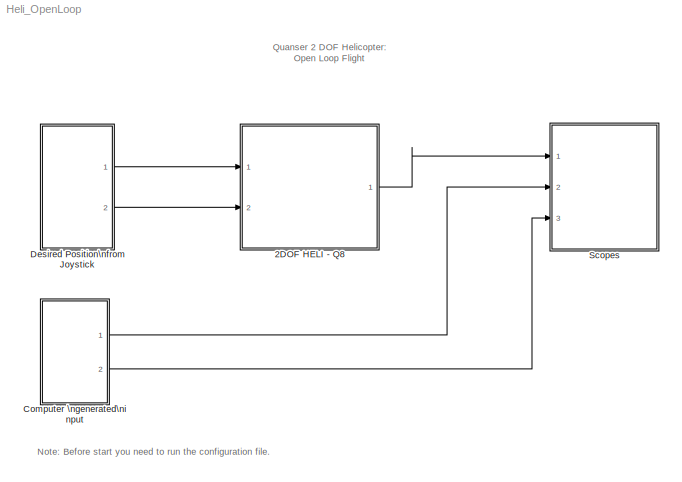
MODEL Heli_OpenLoop
KIND model
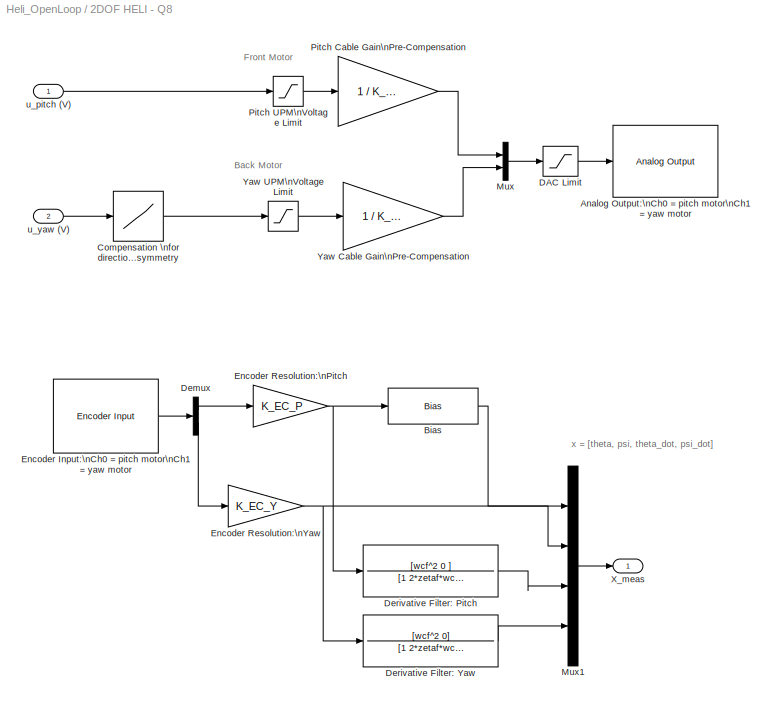
BLOCK [SubSystem] 2DOF HELI - Q8
  AncestorBlock = heli_2d_lib/2DOF HELI - Q8
  MaskHideContents = off
  MinAlgLoopOccurrences = off
  Ports = [2, 1]
  RTWSystemCode = Auto
  TreatAsAtomicUnit = off
BLOCK [Reference] 2DOF HELI - Q8/Analog Output:\nCh0 = pitch motor\nCh1 = yaw motor  REF=qctools/Quanser Consulting\nQ8 Series/Analog Output
  Ports = [1]
  SourceBlock = qctools/Quanser Consulting\nQ8 Series/Analog Output
  SourceType = Q8 Analog Output
  boardNumber = 0
  channels = [0,1]
  finalVect = 0
  initialVect = 0
  inputVolts = on
  modesVect = 0
  rangesVect = 10
  sampleTime = -1
  simulationOutput = off
BLOCK [Bias] 2DOF HELI - Q8/Bias
  Bias = theta_0
  SaturateOnIntegerOverflow = off
BLOCK [Lookup] 2DOF HELI - Q8/Compensation \nfor direction Asymmetry 
  InputValues = [-[12.5  10 7.5]  0  [7.5 10  12.5 15] ]
  OutputValues = [-[12.5  10 7.5] *.4 0  [7.5 10  12.5 15] ]
  SaturateOnIntegerOverflow = off
BLOCK [Saturate] 2DOF HELI - Q8/DAC Limit
  LowerLimit = - VMAX_DAC
  UpperLimit = VMAX_DAC
BLOCK [Demux] 2DOF HELI - Q8/Demux
  DisplayOption = bar
  Outputs = 2
  Ports = [1, 2]
BLOCK [TransferFcn] 2DOF HELI - Q8/Derivative Filter: Pitch
  Denominator = [1 2*zetaf*wcf wcf^2]
  Numerator = [wcf^2 0 ]
BLOCK [TransferFcn] 2DOF HELI - Q8/Derivative Filter: Yaw
  Denominator = [1 2*zetaf*wcf wcf^2]
  Numerator = [wcf^2 0]
BLOCK [Reference] 2DOF HELI - Q8/Encoder Input:\nCh0 = pitch motor\nCh1 = yaw motor  REF=qctools/Quanser Consulting\nQ8 Series/Encoder Input
  Ports = [0, 1]
  ShowPortLabels = on
  SourceBlock = qctools/Quanser Consulting\nQ8 Series/Encoder Input
  SourceType = Q8 Encoder Input
  bcd = off
  boardNumber = 0
  channels = [0,1]
  enableIndex = on
  flagString = FLG1 is IDX and FLG2 is E
  frequency = 16666666.6667
  indexPolarity = on
  initial = 0
  modeStr = Normal
  prescale = 1
  preserveCounts = off
  quadratureStr = 4X
  reloadOnIndex = off
  sampleTime = default_sample_time
  simulationInput = off
  synchronousIndex = on
BLOCK [Gain] 2DOF HELI - Q8/Encoder Resolution:\nPitch 
  Gain = K_EC_P
  OutDataTypeMode = Inherit via internal rule
  ParameterDataTypeMode = Inherit via internal rule
  SaturateOnIntegerOverflow = off
BLOCK [Gain] 2DOF HELI - Q8/Encoder Resolution:\nYaw
  Gain = K_EC_Y
  OutDataTypeMode = Inherit via internal rule
  ParameterDataTypeMode = Inherit via internal rule
  SaturateOnIntegerOverflow = off
BLOCK [Mux] 2DOF HELI - Q8/Mux
  DisplayOption = bar
  Inputs = 2
  Ports = [2, 1]
BLOCK [Mux] 2DOF HELI - Q8/Mux1
  DisplayOption = bar
  Ports = [4, 1]
BLOCK [Gain] 2DOF HELI - Q8/Pitch Cable Gain\nPre-Compensation
  Gain = 1 / K_CABLE_P
BLOCK [Saturate] 2DOF HELI - Q8/Pitch UPM\nVoltage Limit
  LowerLimit = - VMAX_UPM_P
  UpperLimit = VMAX_UPM_P
BLOCK [Outport] 2DOF HELI - Q8/X_meas
  BusOutputAsStruct = off
  IconDisplay = Port number
BLOCK [Gain] 2DOF HELI - Q8/Yaw Cable Gain\nPre-Compensation
  Gain = 1 / K_CABLE_Y
BLOCK [Saturate] 2DOF HELI - Q8/Yaw UPM\nVoltage Limit
  LowerLimit = - VMAX_UPM_Y
  UpperLimit = VMAX_UPM_Y
BLOCK [Inport] 2DOF HELI - Q8/u_pitch (V)
  IconDisplay = Port number
BLOCK [Inport] 2DOF HELI - Q8/u_yaw (V)
  IconDisplay = Port number
  Port = 2
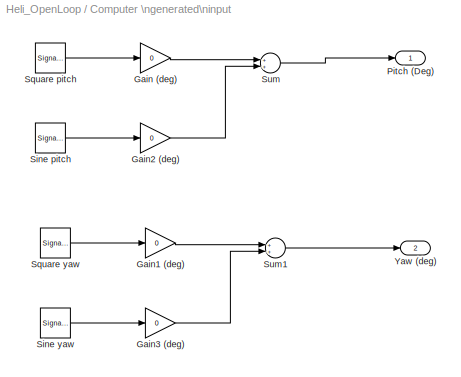
BLOCK [SubSystem] Computer \ngenerated\ninput
  MaskHideContents = off
  MinAlgLoopOccurrences = off
  Ports = [0, 2]
  RTWSystemCode = Auto
  TreatAsAtomicUnit = off
BLOCK [Gain] Computer \ngenerated\ninput/Gain (deg)
  Gain = 0
  OutDataTypeMode = Inherit via internal rule
  ParameterDataTypeMode = Inherit via internal rule
  SaturateOnIntegerOverflow = off
BLOCK [Gain] Computer \ngenerated\ninput/Gain1 (deg)
  Gain = 0
  OutDataTypeMode = Inherit via internal rule
  ParameterDataTypeMode = Inherit via internal rule
  SaturateOnIntegerOverflow = off
BLOCK [Gain] Computer \ngenerated\ninput/Gain2 (deg)
  Gain = 0
  OutDataTypeMode = Inherit via internal rule
  ParameterDataTypeMode = Inherit via internal rule
  SaturateOnIntegerOverflow = off
BLOCK [Gain] Computer \ngenerated\ninput/Gain3 (deg)
  Gain = 0
  OutDataTypeMode = Inherit via internal rule
  ParameterDataTypeMode = Inherit via internal rule
  SaturateOnIntegerOverflow = off
BLOCK [Outport] Computer \ngenerated\ninput/Pitch (Deg)
  BusOutputAsStruct = off
  IconDisplay = Port number
BLOCK [SignalGenerator] Computer \ngenerated\ninput/Sine pitch
  Frequency = 1/30
  Ports = [0, 1]
BLOCK [SignalGenerator] Computer \ngenerated\ninput/Sine yaw
  Frequency = .02
  Ports = [0, 1]
BLOCK [SignalGenerator] Computer \ngenerated\ninput/Square pitch
  Frequency = 1/30
  Ports = [0, 1]
  WaveForm = square
BLOCK [SignalGenerator] Computer \ngenerated\ninput/Square yaw
  Frequency = 1/60*2
  Ports = [0, 1]
  WaveForm = square
BLOCK [Sum] Computer \ngenerated\ninput/Sum
  InputSameDT = off
  OutDataTypeMode = Inherit via internal rule
  Ports = [2, 1]
  SaturateOnIntegerOverflow = off
BLOCK [Sum] Computer \ngenerated\ninput/Sum1
  InputSameDT = off
  OutDataTypeMode = Inherit via internal rule
  Ports = [2, 1]
  SaturateOnIntegerOverflow = off
BLOCK [Outport] Computer \ngenerated\ninput/Yaw (deg)
  BusOutputAsStruct = off
  IconDisplay = Port number
  Port = 2
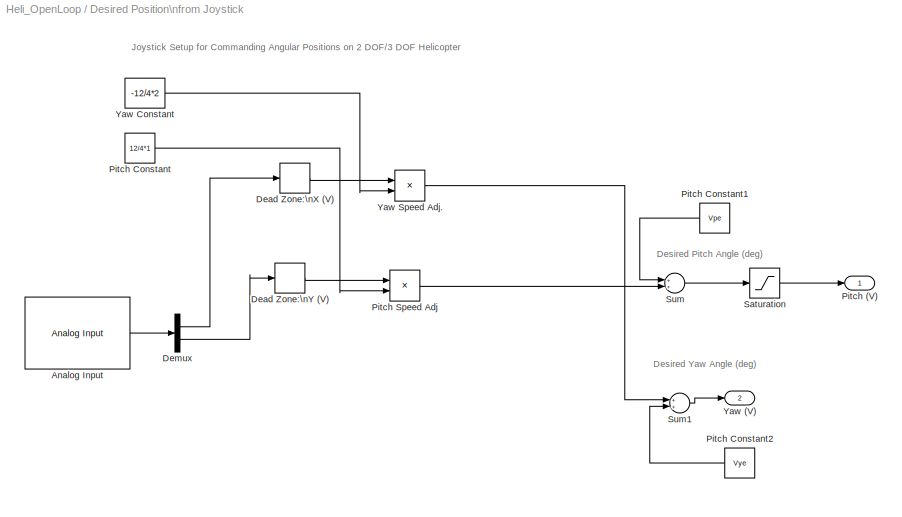
BLOCK [SubSystem] Desired Position\nfrom Joystick
  AncestorBlock = q_modules3/Joystick
  MaskHideContents = off
  MinAlgLoopOccurrences = off
  Ports = [0, 2]
  RTWSystemCode = Auto
  TreatAsAtomicUnit = off
BLOCK [Reference] Desired Position\nfrom Joystick/Analog Input  REF=qctools/Quanser Consulting\nQ8 Series/Analog Input
  Ports = [0, 1]
  SourceBlock = qctools/Quanser Consulting\nQ8 Series/Analog Input
  SourceType = Q8 Analog Input
  boardNumber = 0
  channels = [2 3]
  outputVolts = on
  sampleTime = default_sample_time
  simulationInput = off
  simultaneous = on
  useBusy = on
BLOCK [DeadZone] Desired Position\nfrom Joystick/Dead Zone:\nX (V)
  LowerValue = -JOYSTICK_X_DZ
  UpperValue = JOYSTICK_X_DZ
BLOCK [DeadZone] Desired Position\nfrom Joystick/Dead Zone:\nY (V)
  LowerValue = -JOYSTICK_Y_DZ
  UpperValue = JOYSTICK_Y_DZ
BLOCK [Demux] Desired Position\nfrom Joystick/Demux
  DisplayOption = bar
  Outputs = 2
  Ports = [1, 2]
BLOCK [Constant] Desired Position\nfrom Joystick/Pitch  Constant
  Value = 12/4*1
BLOCK [Outport] Desired Position\nfrom Joystick/Pitch (V)
  BusOutputAsStruct = off
  IconDisplay = Port number
BLOCK [Constant] Desired Position\nfrom Joystick/Pitch Constant1
  Value = Vpe
BLOCK [Constant] Desired Position\nfrom Joystick/Pitch Constant2
  Value = Vye
BLOCK [Product] Desired Position\nfrom Joystick/Pitch Speed Adj
  InputSameDT = off
  OutDataTypeMode = Inherit via internal rule
  Ports = [2, 1]
  SaturateOnIntegerOverflow = off
BLOCK [Saturate] Desired Position\nfrom Joystick/Saturation
  LowerLimit = 2
  UpperLimit = 11
BLOCK [Sum] Desired Position\nfrom Joystick/Sum
  InputSameDT = off
  OutDataTypeMode = Inherit via internal rule
  Ports = [2, 1]
  SaturateOnIntegerOverflow = off
BLOCK [Sum] Desired Position\nfrom Joystick/Sum1
  InputSameDT = off
  OutDataTypeMode = Inherit via internal rule
  Ports = [2, 1]
  SaturateOnIntegerOverflow = off
BLOCK [Outport] Desired Position\nfrom Joystick/Yaw (V)
  BusOutputAsStruct = off
  IconDisplay = Port number
  Port = 2
BLOCK [Constant] Desired Position\nfrom Joystick/Yaw Constant
  Value = -12/4*2
BLOCK [Product] Desired Position\nfrom Joystick/Yaw Speed Adj.
  InputSameDT = off
  OutDataTypeMode = Inherit via internal rule
  Ports = [2, 1]
  SaturateOnIntegerOverflow = off
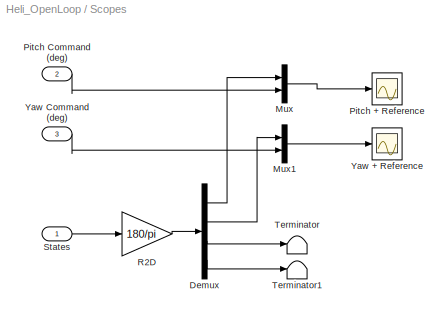
BLOCK [SubSystem] Scopes
  MaskHideContents = off
  MinAlgLoopOccurrences = off
  Ports = [3]
  RTWSystemCode = Auto
  TreatAsAtomicUnit = off
BLOCK [Demux] Scopes/Demux
  DisplayOption = bar
  Ports = [1, 4]
BLOCK [Mux] Scopes/Mux
  DisplayOption = bar
  Inputs = 2
  Ports = [2, 1]
BLOCK [Mux] Scopes/Mux1
  DisplayOption = bar
  Inputs = 2
  Ports = [2, 1]
BLOCK [Scope] Scopes/Pitch + Reference
  DataFormat = StructureWithTime
  Floating = off
  NumInputPorts = 1
  Ports = [1]
  SampleTime = 0
  SaveName = ScopeData6
BLOCK [Inport] Scopes/Pitch Command (deg)
  IconDisplay = Port number
  Port = 2
BLOCK [Gain] Scopes/R2D
  Gain = 180/pi
  OutDataTypeMode = Inherit via internal rule
  ParameterDataTypeMode = Inherit via internal rule
  SaturateOnIntegerOverflow = off
BLOCK [Inport] Scopes/States
  IconDisplay = Port number
BLOCK [Terminator] Scopes/Terminator
BLOCK [Terminator] Scopes/Terminator1
BLOCK [Scope] Scopes/Yaw + Reference
  DataFormat = StructureWithTime
  Floating = off
  NumInputPorts = 1
  Ports = [1]
  SampleTime = 0
  SaveName = ScopeData7
BLOCK [Inport] Scopes/Yaw Command (deg)
  IconDisplay = Port number
  Port = 3
ANNOTATION (root): Note: Before start you need to run the configuration file.
ANNOTATION (root): Quanser 2 DOF Helicopter:\nOpen Loop Flight
ANNOTATION 2DOF HELI - Q8: Back Motor
ANNOTATION 2DOF HELI - Q8: Front Motor
ANNOTATION 2DOF HELI - Q8: x = [theta, psi, theta_dot, psi_dot]
ANNOTATION Desired Position\nfrom Joystick: Desired Pitch Angle (deg)
ANNOTATION Desired Position\nfrom Joystick: Desired Yaw Angle (deg)
ANNOTATION Desired Position\nfrom Joystick: Joystick Setup for Commanding Angular Positions on 2 DOF/3 DOF Helicopter
LINE 2DOF HELI - Q8/Bias:1 -> 2DOF HELI - Q8/Mux1:1
LINE 2DOF HELI - Q8/Compensation \nfor direction Asymmetry :1 -> 2DOF HELI - Q8/Yaw UPM\nVoltage Limit:1
LINE 2DOF HELI - Q8/DAC Limit:1 -> 2DOF HELI - Q8/Analog Output:\nCh0 = pitch motor\nCh1 = yaw motor:1
LINE 2DOF HELI - Q8/Demux:1 -> 2DOF HELI - Q8/Encoder Resolution:\nPitch :1
LINE 2DOF HELI - Q8/Demux:2 -> 2DOF HELI - Q8/Encoder Resolution:\nYaw:1
LINE 2DOF HELI - Q8/Derivative Filter: Pitch:1 -> 2DOF HELI - Q8/Mux1:3
LINE 2DOF HELI - Q8/Derivative Filter: Yaw:1 -> 2DOF HELI - Q8/Mux1:4
LINE 2DOF HELI - Q8/Encoder Input:\nCh0 = pitch motor\nCh1 = yaw motor:1 -> 2DOF HELI - Q8/Demux:1
NET 2DOF HELI - Q8/Encoder Resolution:\nPitch :1 -> 2DOF HELI - Q8/Bias:1, 2DOF HELI - Q8/Derivative Filter: Pitch:1
NET 2DOF HELI - Q8/Encoder Resolution:\nYaw:1 -> 2DOF HELI - Q8/Derivative Filter: Yaw:1, 2DOF HELI - Q8/Mux1:2
LINE 2DOF HELI - Q8/Mux1:1 -> 2DOF HELI - Q8/X_meas:1
LINE 2DOF HELI - Q8/Mux:1 -> 2DOF HELI - Q8/DAC Limit:1
LINE 2DOF HELI - Q8/Pitch Cable Gain\nPre-Compensation:1 -> 2DOF HELI - Q8/Mux:1
LINE 2DOF HELI - Q8/Pitch UPM\nVoltage Limit:1 -> 2DOF HELI - Q8/Pitch Cable Gain\nPre-Compensation:1
LINE 2DOF HELI - Q8/Yaw Cable Gain\nPre-Compensation:1 -> 2DOF HELI - Q8/Mux:2
LINE 2DOF HELI - Q8/Yaw UPM\nVoltage Limit:1 -> 2DOF HELI - Q8/Yaw Cable Gain\nPre-Compensation:1
LINE 2DOF HELI - Q8/u_pitch (V):1 -> 2DOF HELI - Q8/Pitch UPM\nVoltage Limit:1
LINE 2DOF HELI - Q8/u_yaw (V):1 -> 2DOF HELI - Q8/Compensation \nfor direction Asymmetry :1
LINE 2DOF HELI - Q8:1 -> Scopes:1
LINE Computer \ngenerated\ninput/Gain (deg):1 -> Computer \ngenerated\ninput/Sum:1
LINE Computer \ngenerated\ninput/Gain1 (deg):1 -> Computer \ngenerated\ninput/Sum1:1
LINE Computer \ngenerated\ninput/Gain2 (deg):1 -> Computer \ngenerated\ninput/Sum:2
LINE Computer \ngenerated\ninput/Gain3 (deg):1 -> Computer \ngenerated\ninput/Sum1:2
LINE Computer \ngenerated\ninput/Sine pitch:1 -> Computer \ngenerated\ninput/Gain2 (deg):1
LINE Computer \ngenerated\ninput/Sine yaw:1 -> Computer \ngenerated\ninput/Gain3 (deg):1
LINE Computer \ngenerated\ninput/Square pitch:1 -> Computer \ngenerated\ninput/Gain (deg):1
LINE Computer \ngenerated\ninput/Square yaw:1 -> Computer \ngenerated\ninput/Gain1 (deg):1
LINE Computer \ngenerated\ninput/Sum1:1 -> Computer \ngenerated\ninput/Yaw (deg):1
LINE Computer \ngenerated\ninput/Sum:1 -> Computer \ngenerated\ninput/Pitch (Deg):1
LINE Computer \ngenerated\ninput:1 -> Scopes:2
LINE Computer \ngenerated\ninput:2 -> Scopes:3
LINE Desired Position\nfrom Joystick/Analog Input:1 -> Desired Position\nfrom Joystick/Demux:1
LINE Desired Position\nfrom Joystick/Dead Zone:\nX (V):1 -> Desired Position\nfrom Joystick/Yaw Speed Adj.:1
LINE Desired Position\nfrom Joystick/Dead Zone:\nY (V):1 -> Desired Position\nfrom Joystick/Pitch Speed Adj:1
LINE Desired Position\nfrom Joystick/Demux:1 -> Desired Position\nfrom Joystick/Dead Zone:\nX (V):1
LINE Desired Position\nfrom Joystick/Demux:2 -> Desired Position\nfrom Joystick/Dead Zone:\nY (V):1
LINE Desired Position\nfrom Joystick/Pitch  Constant:1 -> Desired Position\nfrom Joystick/Pitch Speed Adj:2
LINE Desired Position\nfrom Joystick/Pitch Constant1:1 -> Desired Position\nfrom Joystick/Sum:1
LINE Desired Position\nfrom Joystick/Pitch Constant2:1 -> Desired Position\nfrom Joystick/Sum1:2
LINE Desired Position\nfrom Joystick/Pitch Speed Adj:1 -> Desired Position\nfrom Joystick/Sum:2
LINE Desired Position\nfrom Joystick/Saturation:1 -> Desired Position\nfrom Joystick/Pitch (V):1
LINE Desired Position\nfrom Joystick/Sum1:1 -> Desired Position\nfrom Joystick/Yaw (V):1
LINE Desired Position\nfrom Joystick/Sum:1 -> Desired Position\nfrom Joystick/Saturation:1
LINE Desired Position\nfrom Joystick/Yaw Constant:1 -> Desired Position\nfrom Joystick/Yaw Speed Adj.:2
LINE Desired Position\nfrom Joystick/Yaw Speed Adj.:1 -> Desired Position\nfrom Joystick/Sum1:1
LINE Desired Position\nfrom Joystick:1 -> 2DOF HELI - Q8:1
LINE Desired Position\nfrom Joystick:2 -> 2DOF HELI - Q8:2
LINE Scopes/Demux:1 -> Scopes/Mux:1
LINE Scopes/Demux:2 -> Scopes/Mux1:1
LINE Scopes/Demux:3 -> Scopes/Terminator:1
LINE Scopes/Demux:4 -> Scopes/Terminator1:1
LINE Scopes/Mux1:1 -> Scopes/Yaw + Reference:1
LINE Scopes/Mux:1 -> Scopes/Pitch + Reference:1
LINE Scopes/Pitch Command (deg):1 -> Scopes/Mux:2
LINE Scopes/R2D:1 -> Scopes/Demux:1
LINE Scopes/States:1 -> Scopes/R2D:1
LINE Scopes/Yaw Command (deg):1 -> Scopes/Mux1:2
note: NET lines group one-source signal fan-out (src -> all destinations, sorted); 1:1 wires keep LINE
